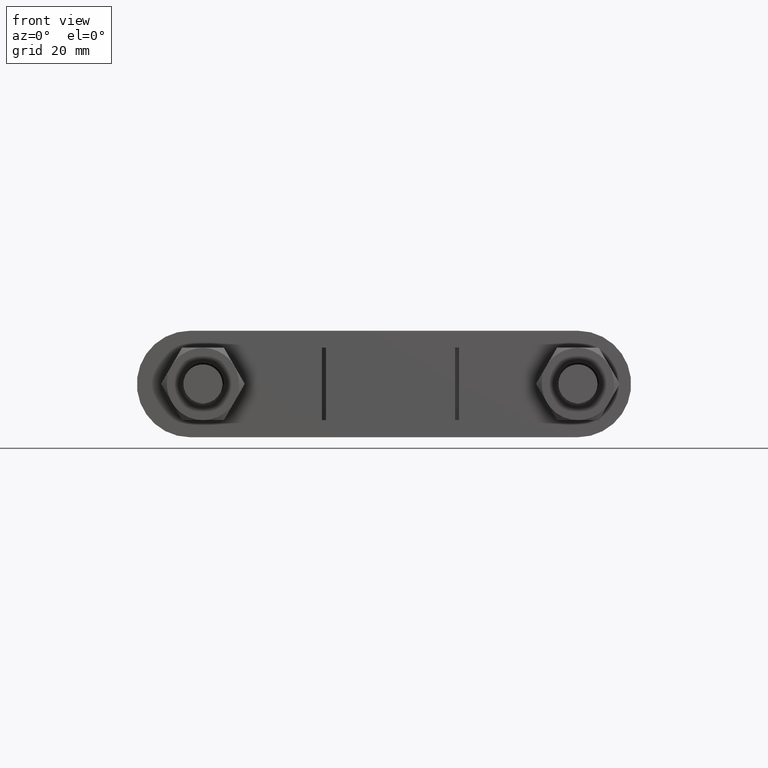
[diagram: clean part render]
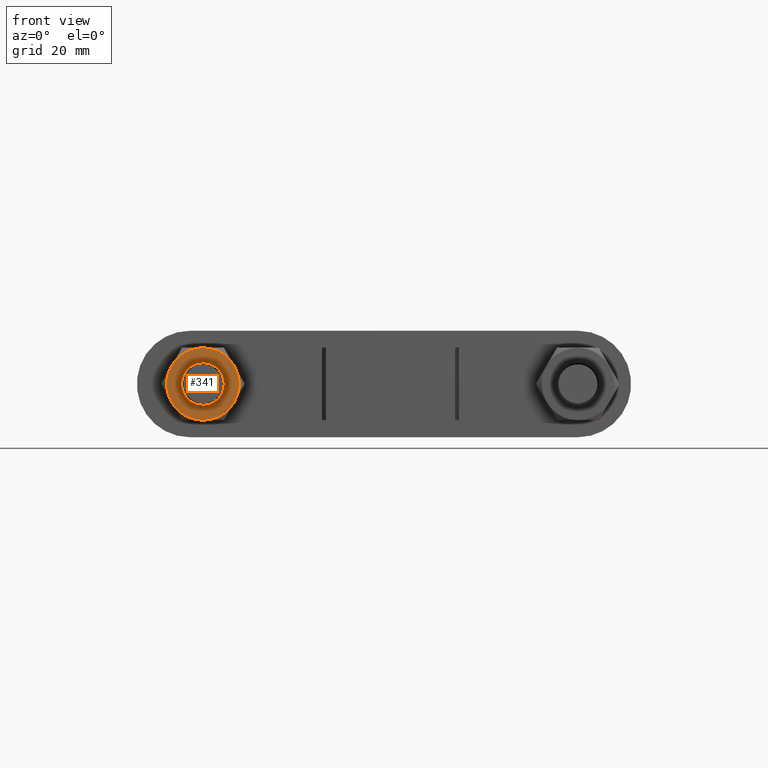
[diagram: same view with one face highlighted and labeled with its STEP entity id]
A machine part, front view. The second image highlights one B-rep face of the part: STEP entity #341.
In plain terms, the highlighted planar face has unit normal (0, 1, 0).
Its self-contained STEP definition (entity closure, byte-faithful):
#341 = ADVANCED_FACE( '', ( #546, #547 ), #548, .F. );
#546 = FACE_OUTER_BOUND( '', #1470, .T. );
#547 = FACE_BOUND( '', #1471, .T. );
#548 = PLANE( '', #1472 );
#1470 = EDGE_LOOP( '', ( #2086, #2087, #2088, #2089, #2090, #2091 ) );
#1471 = EDGE_LOOP( '', ( #2092 ) );
#1472 = AXIS2_PLACEMENT_3D( '', #2093, #2094, #2095 );
#2086 = ORIENTED_EDGE( '', *, *, #2485, .F. );
#2087 = ORIENTED_EDGE( '', *, *, #2519, .F. );
#2088 = ORIENTED_EDGE( '', *, *, #2497, .F. );
#2089 = ORIENTED_EDGE( '', *, *, #2514, .F. );
#2090 = ORIENTED_EDGE( '', *, *, #2483, .F. );
#2091 = ORIENTED_EDGE( '', *, *, #2520, .F. );
#2092 = ORIENTED_EDGE( '', *, *, #2521, .T. );
#2093 = CARTESIAN_POINT( '', ( -44.0000000000000, 22.0000000000004, 3.22452568118915E-015 ) );
#2094 = DIRECTION( '', ( 1.49966072182214E-032, 1.00000000000000, 6.12303176911190E-017 ) );
#2095 = DIRECTION( '', ( 1.00000000000000, 0.000000000000000, -2.44921270764475E-016 ) );
#2483 = EDGE_CURVE( '', #2800, #2802, #2803, .T. );
#2485 = EDGE_CURVE( '', #2805, #2806, #2807, .T. );
#2497 = EDGE_CURVE( '', #2821, #2828, #2829, .T. );
#2514 = EDGE_CURVE( '', #2802, #2821, #2859, .T. );
#2519 = EDGE_CURVE( '', #2828, #2805, #2865, .T. );
#2520 = EDGE_CURVE( '', #2806, #2800, #2866, .T. );
#2521 = EDGE_CURVE( '', #2867, #2867, #2868, .T. );
#2800 = VERTEX_POINT( '', #3495 );
#2802 = VERTEX_POINT( '', #3502 );
#2803 = CIRCLE( '', #3503, 8.49999999999647 );
#2805 = VERTEX_POINT( '', #3510 );
#2806 = VERTEX_POINT( '', #3511 );
#2807 = CIRCLE( '', #3512, 8.49999999999647 );
#2821 = VERTEX_POINT( '', #3538 );
#2828 = VERTEX_POINT( '', #3557 );
#2829 = CIRCLE( '', #3558, 8.49999999999647 );
#2859 = CIRCLE( '', #3600, 8.49999999999647 );
#2865 = CIRCLE( '', #3613, 8.49999999999647 );
#2866 = CIRCLE( '', #3614, 8.49999999999647 );
#2867 = VERTEX_POINT( '', #3615 );
#2868 = CIRCLE( '', #3616, 4.99999999999792 );
#3495 = CARTESIAN_POINT( '', ( -36.6387840678354, 22.0000000000004, 4.24999999999837 ) );
#3502 = CARTESIAN_POINT( '', ( -36.6387840678352, 22.0000000000004, -4.24999999999793 ) );
#3503 = AXIS2_PLACEMENT_3D( '', #3995, #3996, #3997 );
#3510 = CARTESIAN_POINT( '', ( -51.3612159321648, 22.0000000000004, 4.24999999999791 ) );
#3511 = CARTESIAN_POINT( '', ( -44.0000000000000, 22.0000000000003, 8.49999999999623 ) );
#3512 = AXIS2_PLACEMENT_3D( '', #3998, #3999, #4000 );
#3538 = CARTESIAN_POINT( '', ( -44.0000000000000, 22.0000000000003, -8.49999999999623 ) );
#3557 = CARTESIAN_POINT( '', ( -51.3612159321646, 22.0000000000004, -4.24999999999837 ) );
#3558 = AXIS2_PLACEMENT_3D( '', #4014, #4015, #4016 );
#3600 = AXIS2_PLACEMENT_3D( '', #4048, #4049, #4050 );
#3613 = AXIS2_PLACEMENT_3D( '', #4056, #4057, #4058 );
#3614 = AXIS2_PLACEMENT_3D( '', #4059, #4060, #4061 );
#3615 = CARTESIAN_POINT( '', ( -44.0000000000000, 22.0000000000004, 4.99999999999792 ) );
#3616 = AXIS2_PLACEMENT_3D( '', #4062, #4063, #4064 );
#3995 = CARTESIAN_POINT( '', ( -44.0000000000000, 22.0000000000004, 3.22452568118915E-015 ) );
#3996 = DIRECTION( '', ( 1.49966072182214E-032, 1.00000000000000, 6.12303176911190E-017 ) );
#3997 = DIRECTION( '', ( 0.000000000000000, -6.12303176911190E-017, 1.00000000000000 ) );
#3998 = CARTESIAN_POINT( '', ( -44.0000000000000, 22.0000000000004, 3.22452568118915E-015 ) );
#3999 = DIRECTION( '', ( 1.49966072182214E-032, 1.00000000000000, 6.12303176911190E-017 ) );
#4000 = DIRECTION( '', ( 0.000000000000000, -6.12303176911190E-017, 1.00000000000000 ) );
#4014 = CARTESIAN_POINT( '', ( -44.0000000000000, 22.0000000000004, 3.22452568118915E-015 ) );
#4015 = DIRECTION( '', ( 1.49966072182214E-032, 1.00000000000000, 6.12303176911190E-017 ) );
#4016 = DIRECTION( '', ( 0.000000000000000, -6.12303176911190E-017, 1.00000000000000 ) );
#4048 = CARTESIAN_POINT( '', ( -44.0000000000000, 22.0000000000004, 3.22452568118915E-015 ) );
#4049 = DIRECTION( '', ( 1.49966072182214E-032, 1.00000000000000, 6.12303176911190E-017 ) );
#4050 = DIRECTION( '', ( 0.000000000000000, -6.12303176911190E-017, 1.00000000000000 ) );
#4056 = CARTESIAN_POINT( '', ( -44.0000000000000, 22.0000000000004, 3.22452568118915E-015 ) );
#4057 = DIRECTION( '', ( 1.49966072182214E-032, 1.00000000000000, 6.12303176911190E-017 ) );
#4058 = DIRECTION( '', ( 0.000000000000000, -6.12303176911190E-017, 1.00000000000000 ) );
#4059 = CARTESIAN_POINT( '', ( -44.0000000000000, 22.0000000000004, 3.22452568118915E-015 ) );
#4060 = DIRECTION( '', ( 1.49966072182214E-032, 1.00000000000000, 6.12303176911190E-017 ) );
#4061 = DIRECTION( '', ( 0.000000000000000, -6.12303176911190E-017, 1.00000000000000 ) );
#4062 = CARTESIAN_POINT( '', ( -44.0000000000000, 22.0000000000004, 3.22452568118915E-015 ) );
#4063 = DIRECTION( '', ( 1.49966072182214E-032, 1.00000000000000, 6.12303176911190E-017 ) );
#4064 = DIRECTION( '', ( 0.000000000000000, -6.12303176911190E-017, 1.00000000000000 ) );